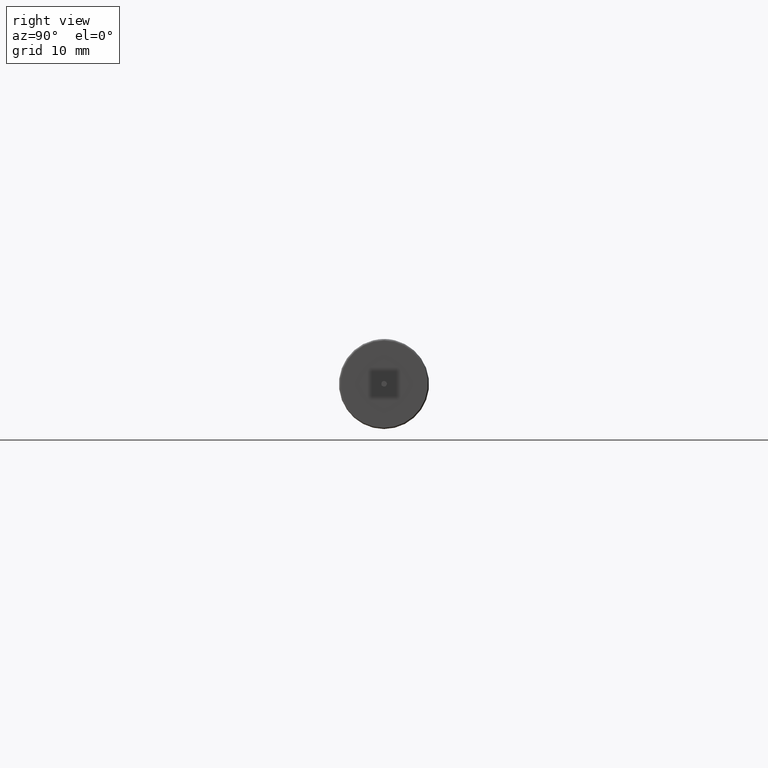
[diagram: clean part render]
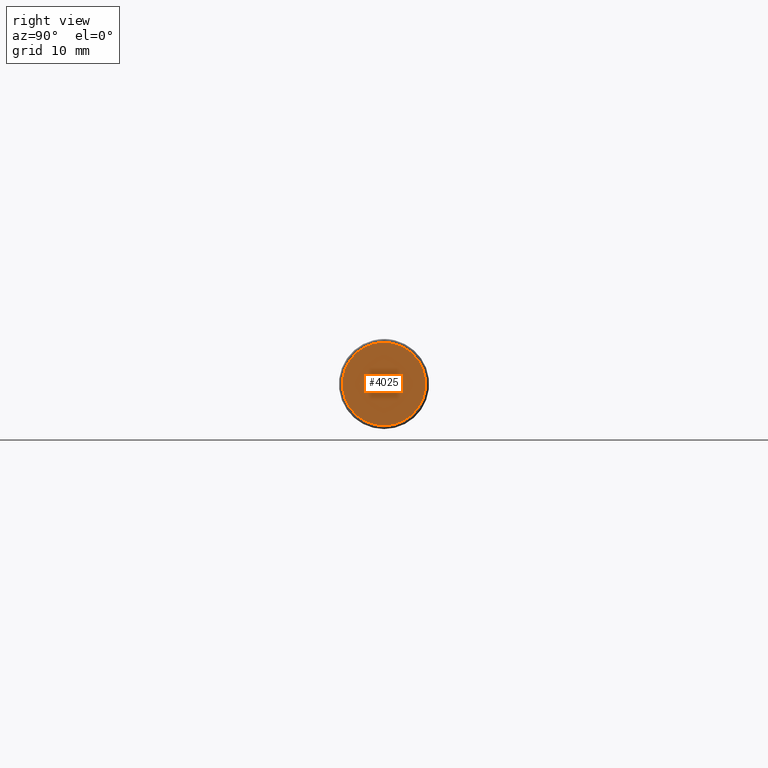
[diagram: same view with one face highlighted and labeled with its STEP entity id]
A machine part, right view. The second image highlights one B-rep face of the part: STEP entity #4025.
In plain terms, the highlighted planar face has unit normal (1, 0, 0).
Its self-contained STEP definition (entity closure, byte-faithful):
#27 = CARTESIAN_POINT ( 'NONE',  ( 20.00000000000000000, 7.654042494670957600E-016, 6.250000000000000000 ) ) ;
#93 = DIRECTION ( 'NONE',  ( 0.0000000000000000000, 0.0000000000000000000, -1.000000000000000000 ) ) ;
#110 = VERTEX_POINT ( 'NONE', #973 ) ;
#138 = AXIS2_PLACEMENT_3D ( 'NONE', #2628, #422, #734 ) ;
#166 = AXIS2_PLACEMENT_3D ( 'NONE', #2539, #2640, #93 ) ;
#279 = DIRECTION ( 'NONE',  ( 0.0000000000000000000, 0.0000000000000000000, -1.000000000000000000 ) ) ;
#303 = FACE_BOUND ( 'NONE', #701, .T. ) ;
#422 = DIRECTION ( 'NONE',  ( 1.000000000000000000, 0.0000000000000000000, 0.0000000000000000000 ) ) ;
#436 = EDGE_CURVE ( 'NONE', #110, #1789, #3956, .T. ) ;
#537 = CARTESIAN_POINT ( 'NONE',  ( 20.00000000000000000, 0.0000000000000000000, 0.0000000000000000000 ) ) ;
#675 = DIRECTION ( 'NONE',  ( 1.000000000000000000, 0.0000000000000000000, 0.0000000000000000000 ) ) ;
#701 = EDGE_LOOP ( 'NONE', ( #2582, #3169 ) ) ;
#734 = DIRECTION ( 'NONE',  ( 0.0000000000000000000, 0.0000000000000000000, -1.000000000000000000 ) ) ;
#973 = CARTESIAN_POINT ( 'NONE',  ( 20.00000000000000000, 5.082284216461516300E-017, -0.4150000000000000400 ) ) ;
#1316 = CIRCLE ( 'NONE', #3963, 0.4150000000000000400 ) ;
#1475 = ORIENTED_EDGE ( 'NONE', *, *, #4283, .T. ) ;
#1769 = DIRECTION ( 'NONE',  ( 0.0000000000000000000, 0.0000000000000000000, -1.000000000000000000 ) ) ;
#1789 = VERTEX_POINT ( 'NONE', #3685 ) ;
#2351 = EDGE_LOOP ( 'NONE', ( #2613, #1475 ) ) ;
#2410 = CARTESIAN_POINT ( 'NONE',  ( 20.00000000000000000, 0.0000000000000000000, 0.0000000000000000000 ) ) ;
#2539 = CARTESIAN_POINT ( 'NONE',  ( 20.00000000000000000, 0.0000000000000000000, 0.0000000000000000000 ) ) ;
#2582 = ORIENTED_EDGE ( 'NONE', *, *, #4493, .F. ) ;
#2613 = ORIENTED_EDGE ( 'NONE', *, *, #4137, .T. ) ;
#2628 = CARTESIAN_POINT ( 'NONE',  ( 20.00000000000000000, 0.0000000000000000000, 0.0000000000000000000 ) ) ;
#2640 = DIRECTION ( 'NONE',  ( 1.000000000000000000, 0.0000000000000000000, 0.0000000000000000000 ) ) ;
#2730 = DIRECTION ( 'NONE',  ( 0.0000000000000000000, 0.0000000000000000000, -1.000000000000000000 ) ) ;
#2809 = VERTEX_POINT ( 'NONE', #27 ) ;
#2831 = CIRCLE ( 'NONE', #3450, 6.250000000000000000 ) ;
#2849 = PLANE ( 'NONE',  #4261 ) ;
#3089 = DIRECTION ( 'NONE',  ( 1.000000000000000000, 0.0000000000000000000, 0.0000000000000000000 ) ) ;
#3169 = ORIENTED_EDGE ( 'NONE', *, *, #436, .F. ) ;
#3270 = VERTEX_POINT ( 'NONE', #4215 ) ;
#3450 = AXIS2_PLACEMENT_3D ( 'NONE', #537, #3089, #2730 ) ;
#3528 = FACE_OUTER_BOUND ( 'NONE', #2351, .T. ) ;
#3685 = CARTESIAN_POINT ( 'NONE',  ( 20.00000000000000000, 0.0000000000000000000, 0.4150000000000000400 ) ) ;
#3956 = CIRCLE ( 'NONE', #138, 0.4150000000000000400 ) ;
#3963 = AXIS2_PLACEMENT_3D ( 'NONE', #4363, #675, #1769 ) ;
#3982 = DIRECTION ( 'NONE',  ( 1.000000000000000000, 0.0000000000000000000, 0.0000000000000000000 ) ) ;
#4025 = ADVANCED_FACE ( 'NONE', ( #3528, #303 ), #2849, .T. ) ;
#4137 = EDGE_CURVE ( 'NONE', #3270, #2809, #4620, .T. ) ;
#4215 = CARTESIAN_POINT ( 'NONE',  ( 20.00000000000000000, 0.0000000000000000000, -6.250000000000000000 ) ) ;
#4261 = AXIS2_PLACEMENT_3D ( 'NONE', #2410, #3982, #279 ) ;
#4283 = EDGE_CURVE ( 'NONE', #2809, #3270, #2831, .T. ) ;
#4363 = CARTESIAN_POINT ( 'NONE',  ( 20.00000000000000000, 0.0000000000000000000, 0.0000000000000000000 ) ) ;
#4493 = EDGE_CURVE ( 'NONE', #1789, #110, #1316, .T. ) ;
#4620 = CIRCLE ( 'NONE', #166, 6.250000000000000000 ) ;